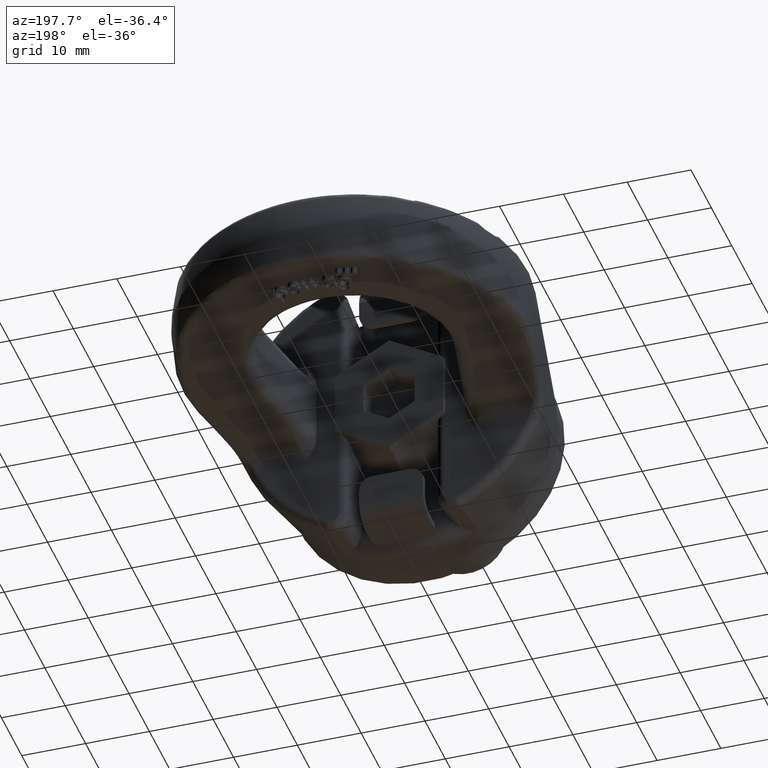
[diagram: clean part render]
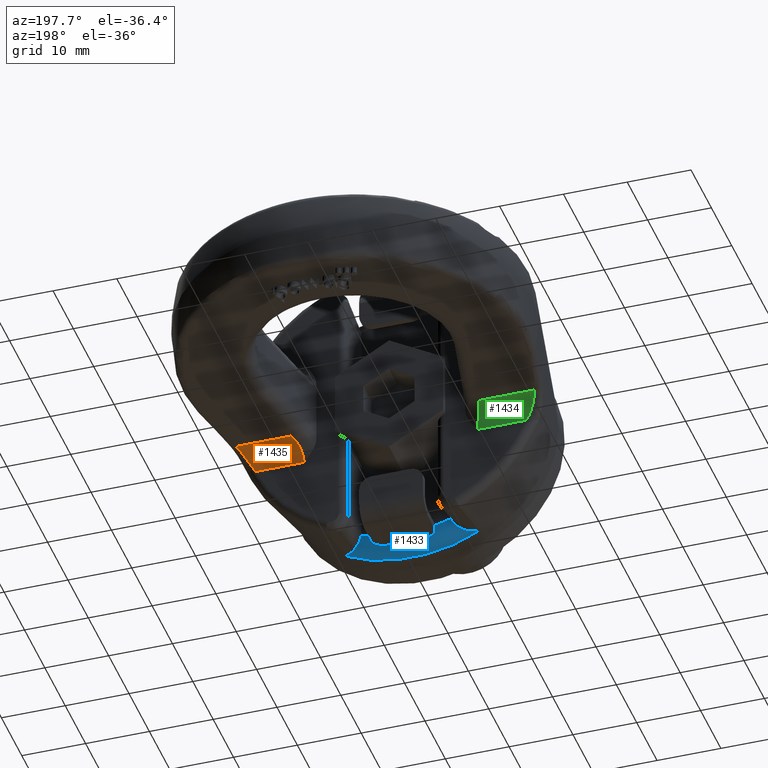
[diagram: same view with three faces highlighted in distinct colors, each labeled with its STEP entity id]
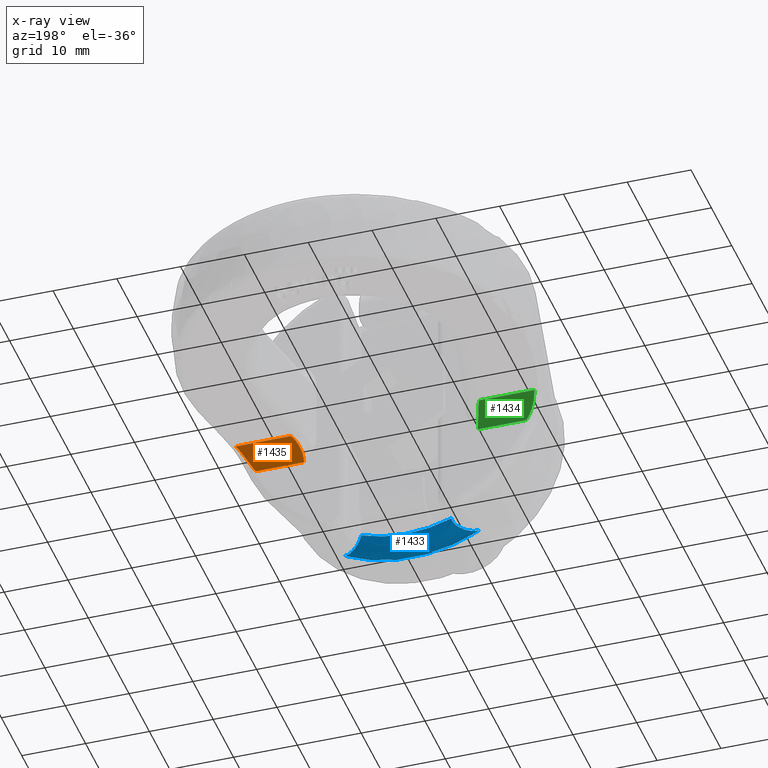
[diagram: x-ray of the same camera — body ghosted, the three highlighted faces saturated]
A machine part, auxiliary view with three faces highlighted in distinct colors.
The next image is the same camera in x-ray (body ghosted, the three faces saturated) — at least one of them is partly hidden behind the body in this view.
Their STEP definitions:

[orange] entity #1435 — the highlighted cylindrical surface (edge-blend (fillet) strip) has radius 3 mm, axis along (1, 0, 0).
#1055=ELLIPSE('',#5263,3.19150256967254,3.);
#1069=CYLINDRICAL_SURFACE('',#5264,3.);
#1203=FACE_OUTER_BOUND('',#1966,.T.);
#1435=ADVANCED_FACE('',(#1203),#1069,.F.);
#1966=EDGE_LOOP('',(#3381,#3382,#3383,#3384));
#2145=LINE('',#6711,#2425);
#2244=LINE('',#8251,#2552);
#2425=VECTOR('',#5473,1.);
#2552=VECTOR('',#5834,1.);
#3381=ORIENTED_EDGE('',*,*,#4366,.F.);
#3382=ORIENTED_EDGE('',*,*,#4646,.T.);
#3383=ORIENTED_EDGE('',*,*,#4606,.F.);
#3384=ORIENTED_EDGE('',*,*,#4647,.T.);
#3976=VERTEX_POINT('',#6710);
#3977=VERTEX_POINT('',#6712);
#4123=VERTEX_POINT('',#8250);
#4124=VERTEX_POINT('',#8252);
#4366=EDGE_CURVE('',#3976,#3977,#2145,.T.);
#4606=EDGE_CURVE('',#4123,#4124,#2244,.T.);
#4646=EDGE_CURVE('',#3976,#4124,#1055,.T.);
#4647=EDGE_CURVE('',#4123,#3977,#5025,.T.);
#5025=B_SPLINE_CURVE_WITH_KNOTS('',3,(#8542,#8543,#8544,#8545,#8546,#8547,
#8548,#8549,#8550,#8551,#8552,#8553,#8554,#8555,#8556,#8557),
 .UNSPECIFIED.,.F.,.F.,(4,3,3,3,3,4),(0.,0.209147169686292,0.420440536468641,
0.639696141850798,0.868719709429796,1.),.UNSPECIFIED.);
#5263=AXIS2_PLACEMENT_3D('',#8541,#5881,#5882);
#5264=AXIS2_PLACEMENT_3D('',#8558,#5883,#5884);
#5473=DIRECTION('',(1.,1.4851200490521E-15,2.34291072916505E-15));
#5834=DIRECTION('',(-1.,-1.4851200490521E-15,-2.34291072916505E-15));
#5881=DIRECTION('',(-0.939996109828548,0.341185160150902,-2.20232697109071E-15));
#5882=DIRECTION('',(0.341185160150902,0.939996109828548,7.99366372349444E-16));
#5883=DIRECTION('',(1.,1.4851200490521E-15,2.34291072916505E-15));
#5884=DIRECTION('',(1.73472347597681E-15,-1.,0.));
#6710=CARTESIAN_POINT('',(13.6366331307684,18.,-8.99999999999998));
#6711=CARTESIAN_POINT('',(11.6722781153861,18.,-8.99999999999998));
#6712=CARTESIAN_POINT('',(21.2296447141688,18.,-8.99999999999996));
#8250=CARTESIAN_POINT('',(23.4186353164932,21.,-5.99999999999995));
#8251=CARTESIAN_POINT('',(-54.9999999999999,20.9999999999999,-6.00000000000014));
#8252=CARTESIAN_POINT('',(14.7255264461241,21.,-5.99999999999997));
#8541=CARTESIAN_POINT('',(14.7255264461241,21.,-8.99999999999997));
#8542=CARTESIAN_POINT('',(23.4186353164932,21.,-5.99999999999995));
#8543=CARTESIAN_POINT('',(23.318591284184,20.652835344821,-5.99999999999995));
#8544=CARTESIAN_POINT('',(23.2012204579252,20.3058772084771,-6.06187042596682));
#8545=CARTESIAN_POINT('',(23.0742548614569,19.987476494943,-6.17603184300754));
#8546=CARTESIAN_POINT('',(22.9458851934657,19.665554690758,-6.29145573428644));
#8547=CARTESIAN_POINT('',(22.8040979725002,19.3643222310341,-6.46316540629763));
#8548=CARTESIAN_POINT('',(22.6542194395019,19.1059823933409,-6.67347957119104));
#8549=CARTESIAN_POINT('',(22.4986877297285,18.8378983932164,-6.89172644751839));
#8550=CARTESIAN_POINT('',(22.3302931005753,18.609343354211,-7.15671366830581));
#8551=CARTESIAN_POINT('',(22.1549444643419,18.4350401279577,-7.44404985465057));
#8552=CARTESIAN_POINT('',(21.9717940895219,18.2529816762562,-7.74417041081129));
#8553=CARTESIAN_POINT('',(21.7764398006005,18.1254870843201,-8.0755870947477));
#8554=CARTESIAN_POINT('',(21.5779505916863,18.0582852711474,-8.41151511994626));
#8555=CARTESIAN_POINT('',(21.4632622364284,18.0194556266278,-8.60561651672135));
#8556=CARTESIAN_POINT('',(21.3464066023016,18.,-8.80326877768136));
#8557=CARTESIAN_POINT('',(21.2296447141688,18.,-8.99999999999996));
#8558=CARTESIAN_POINT('',(11.6722781153861,21.,-8.99999999999998));

[blue] entity #1433 — the highlighted toroidal blend (fillet) surface has major radius 20.0801 mm and minor (blend) radius 2.4 mm.
#1019=TOROIDAL_SURFACE('',#5260,20.0800916422957,2.4);
#1201=FACE_OUTER_BOUND('',#1964,.T.);
#1433=ADVANCED_FACE('',(#1201),#1019,.T.);
#1678=CIRCLE('',#5136,22.4327372004093);
#1714=CIRCLE('',#5251,20.0800916422957);
#1964=EDGE_LOOP('',(#3373,#3374,#3375,#3376));
#3373=ORIENTED_EDGE('',*,*,#4641,.T.);
#3374=ORIENTED_EDGE('',*,*,#4628,.F.);
#3375=ORIENTED_EDGE('',*,*,#4643,.T.);
#3376=ORIENTED_EDGE('',*,*,#4377,.F.);
#3987=VERTEX_POINT('',#6768);
#3988=VERTEX_POINT('',#6770);
#4144=VERTEX_POINT('',#8382);
#4145=VERTEX_POINT('',#8384);
#4377=EDGE_CURVE('',#3987,#3988,#1678,.T.);
#4628=EDGE_CURVE('',#4144,#4145,#1714,.T.);
#4641=EDGE_CURVE('',#3987,#4145,#5021,.T.);
#4643=EDGE_CURVE('',#4144,#3988,#5023,.T.);
#5021=B_SPLINE_CURVE_WITH_KNOTS('',3,(#8435,#8436,#8437,#8438,#8439,#8440,
#8441,#8442,#8443,#8444,#8445,#8446,#8447,#8448,#8449,#8450,#8451,#8452,
#8453,#8454,#8455,#8456),.UNSPECIFIED.,.F.,.F.,(4,3,3,3,3,3,3,4),(0.,0.00194914076730447,
0.271153439757407,0.506798867871062,0.675857967209414,0.784159556123393,
0.891993907586608,1.),.UNSPECIFIED.);
#5023=B_SPLINE_CURVE_WITH_KNOTS('',3,(#8488,#8489,#8490,#8491,#8492,#8493,
#8494,#8495,#8496,#8497,#8498,#8499,#8500,#8501,#8502,#8503,#8504,#8505,
#8506,#8507,#8508,#8509),.UNSPECIFIED.,.F.,.F.,(4,3,3,3,3,3,3,4),(0.,0.108006092413392,
0.215840443876606,0.324142032790587,0.493201132128941,0.728846560242598,
0.998050859232694,1.),.UNSPECIFIED.);
#5136=AXIS2_PLACEMENT_3D('',#6769,#5485,#5486);
#5251=AXIS2_PLACEMENT_3D('',#8383,#5850,#5851);
#5260=AXIS2_PLACEMENT_3D('',#8522,#5875,#5876);
#5485=DIRECTION('',(-1.23908819712629E-16,-1.,-2.90307303142896E-31));
#5486=DIRECTION('',(-1.,1.15994993866274E-16,-2.34291072916505E-15));
#5850=DIRECTION('',(1.23908819712629E-16,1.,2.90307303142896E-31));
#5851=DIRECTION('',(1.,-8.63902170806268E-17,2.34291072916505E-15));
#5875=DIRECTION('',(1.23908819712629E-16,1.,2.90307303142896E-31));
#5876=DIRECTION('',(1.,-1.54334199662511E-16,2.34291072916505E-15));
#6768=CARTESIAN_POINT('',(-10.501333033744,7.62559629229052,-19.8229589823775));
#6769=CARTESIAN_POINT('',(1.11982426825287E-13,7.62559629229051,2.62364829286905E-28));
#6770=CARTESIAN_POINT('',(10.5013330337441,7.62559629229052,-19.8229589823776));
#8382=CARTESIAN_POINT('',(7.05232007456228,10.5,-18.8009271560985));
#8383=CARTESIAN_POINT('',(1.52742436628412E-13,10.5,3.57861893575518E-28));
#8384=CARTESIAN_POINT('',(-7.05232007456219,10.5,-18.8009271560984));
#8435=CARTESIAN_POINT('',(-10.501333033744,7.62559629229052,-19.8229589823775));
#8436=CARTESIAN_POINT('',(-10.4992058885736,7.62778988937801,-19.8245864174677));
#8437=CARTESIAN_POINT('',(-10.4970771308916,7.62998423720541,-19.8262107369617));
#8438=CARTESIAN_POINT('',(-10.4949466631418,7.63217920730647,-19.8278319627798));
#8439=CARTESIAN_POINT('',(-10.2020094377873,7.93398544268004,-20.0507489221639));
#8440=CARTESIAN_POINT('',(-9.87363911208928,8.25207874689975,-20.2174997266942));
#8441=CARTESIAN_POINT('',(-9.53043099155098,8.56904269114705,-20.3087862894162));
#8442=CARTESIAN_POINT('',(-9.23009451436698,8.84641326810273,-20.3886698440918));
#8443=CARTESIAN_POINT('',(-8.9108390046211,9.12991376558816,-20.4125213578264));
#8444=CARTESIAN_POINT('',(-8.59623693834167,9.39756963851445,-20.3586354378062));
#8445=CARTESIAN_POINT('',(-8.36989233826234,9.59013818147683,-20.3198665029383));
#8446=CARTESIAN_POINT('',(-8.14068543916051,9.77894373427041,-20.2393285862488));
#8447=CARTESIAN_POINT('',(-7.92854548790866,9.94513599248283,-20.1082014478386));
#8448=CARTESIAN_POINT('',(-7.79185244544301,10.052222494932,-20.0237092652331));
#8449=CARTESIAN_POINT('',(-7.65999657778488,10.1516207227413,-19.9165164036356));
#8450=CARTESIAN_POINT('',(-7.5423738923051,10.2348467032882,-19.7879482279105));
#8451=CARTESIAN_POINT('',(-7.42559364318106,10.3174766033131,-19.660300882253));
#8452=CARTESIAN_POINT('',(-7.32051191360146,10.3856630681585,-19.5081905914541));
#8453=CARTESIAN_POINT('',(-7.23742799514074,10.4310543656608,-19.3414696736865));
#8454=CARTESIAN_POINT('',(-7.15429736476235,10.4764711833191,-19.1746550211273));
#8455=CARTESIAN_POINT('',(-7.09121297702418,10.5,-18.9887777868662));
#8456=CARTESIAN_POINT('',(-7.05232007456219,10.5,-18.8009271560984));
#8488=CARTESIAN_POINT('',(7.05232007456228,10.5,-18.8009271560985));
#8489=CARTESIAN_POINT('',(7.09121297702428,10.5,-18.9887777868662));
#8490=CARTESIAN_POINT('',(7.15429736476245,10.4764711833191,-19.1746550211274));
#8491=CARTESIAN_POINT('',(7.23742799514083,10.4310543656608,-19.3414696736866));
#8492=CARTESIAN_POINT('',(7.32051191360156,10.3856630681585,-19.5081905914542));
#8493=CARTESIAN_POINT('',(7.42559364318116,10.3174766033131,-19.6603008822531));
#8494=CARTESIAN_POINT('',(7.5423738923052,10.2348467032882,-19.7879482279106));
#8495=CARTESIAN_POINT('',(7.65999657778498,10.1516207227413,-19.9165164036357));
#8496=CARTESIAN_POINT('',(7.79185244544312,10.052222494932,-20.0237092652332));
#8497=CARTESIAN_POINT('',(7.92854548790876,9.94513599248283,-20.1082014478387));
#8498=CARTESIAN_POINT('',(8.14068543916062,9.77894373427041,-20.2393285862489));
#8499=CARTESIAN_POINT('',(8.36989233826245,9.59013818147682,-20.3198665029384));
#8500=CARTESIAN_POINT('',(8.59623693834179,9.39756963851444,-20.3586354378063));
#8501=CARTESIAN_POINT('',(8.91083900462123,9.12991376558816,-20.4125213578265));
#8502=CARTESIAN_POINT('',(9.23009451436712,8.84641326810274,-20.3886698440919));
#8503=CARTESIAN_POINT('',(9.53043099155114,8.56904269114708,-20.3087862894162));
#8504=CARTESIAN_POINT('',(9.87363911208944,8.25207874689982,-20.2174997266943));
#8505=CARTESIAN_POINT('',(10.2020094374593,7.93398544229769,-20.0507489222505));
#8506=CARTESIAN_POINT('',(10.4949466631492,7.63217920731501,-19.827831962778));
#8507=CARTESIAN_POINT('',(10.4970771309014,7.62998423721679,-19.8262107369592));
#8508=CARTESIAN_POINT('',(10.4992058885762,7.62778988938087,-19.8245864174671));
#8509=CARTESIAN_POINT('',(10.5013330337441,7.62559629229052,-19.8229589823776));
#8522=CARTESIAN_POINT('',(1.52445055461101E-13,8.1,3.57165156047975E-28));

[green] entity #1434 — the highlighted cylindrical surface (edge-blend (fillet) strip) has radius 3 mm, axis along (1, -0, 0).
#1054=ELLIPSE('',#5261,3.19150256967254,3.);
#1068=CYLINDRICAL_SURFACE('',#5262,3.);
#1202=FACE_OUTER_BOUND('',#1965,.T.);
#1434=ADVANCED_FACE('',(#1202),#1068,.F.);
#1965=EDGE_LOOP('',(#3377,#3378,#3379,#3380));
#2130=LINE('',#6607,#2410);
#2243=LINE('',#8237,#2551);
#2410=VECTOR('',#5444,1.);
#2551=VECTOR('',#5831,1.);
#3377=ORIENTED_EDGE('',*,*,#4602,.F.);
#3378=ORIENTED_EDGE('',*,*,#4644,.T.);
#3379=ORIENTED_EDGE('',*,*,#4339,.F.);
#3380=ORIENTED_EDGE('',*,*,#4645,.T.);
#3951=VERTEX_POINT('',#6606);
#3952=VERTEX_POINT('',#6608);
#4119=VERTEX_POINT('',#8236);
#4120=VERTEX_POINT('',#8238);
#4339=EDGE_CURVE('',#3951,#3952,#2130,.T.);
#4602=EDGE_CURVE('',#4119,#4120,#2243,.T.);
#4644=EDGE_CURVE('',#4119,#3952,#1054,.T.);
#4645=EDGE_CURVE('',#3951,#4120,#5024,.T.);
#5024=B_SPLINE_CURVE_WITH_KNOTS('',3,(#8524,#8525,#8526,#8527,#8528,#8529,
#8530,#8531,#8532,#8533,#8534,#8535,#8536,#8537,#8538,#8539),
 .UNSPECIFIED.,.F.,.F.,(4,3,3,3,3,4),(0.,0.241152970544274,0.480221762712701,
0.709509830435156,0.927904638775179,1.),.UNSPECIFIED.);
#5261=AXIS2_PLACEMENT_3D('',#8523,#5877,#5878);
#5262=AXIS2_PLACEMENT_3D('',#8540,#5879,#5880);
#5444=DIRECTION('',(1.,-1.4851200490521E-15,2.34291072916505E-15));
#5831=DIRECTION('',(-1.,1.4851200490521E-15,-2.34291072916505E-15));
#5877=DIRECTION('',(0.939996109828548,0.341185160150902,2.20232697109071E-15));
#5878=DIRECTION('',(0.341185160150902,-0.939996109828548,7.99366372349443E-16));
#5879=DIRECTION('',(1.,-1.4851200490521E-15,2.34291072916505E-15));
#5880=DIRECTION('',(-1.44560289664734E-15,-1.,0.));
#6606=CARTESIAN_POINT('',(-21.2296447141686,18.,-9.00000000000006));
#6607=CARTESIAN_POINT('',(-6.99999999999998,18.,-9.00000000000002));
#6608=CARTESIAN_POINT('',(-13.6366331307683,18.,-9.00000000000004));
#8236=CARTESIAN_POINT('',(-14.7255264461241,21.,-6.00000000000004));
#8237=CARTESIAN_POINT('',(-55.0000000000001,21.0000000000001,-6.00000000000014));
#8238=CARTESIAN_POINT('',(-23.4186353164931,21.,-6.00000000000006));
#8523=CARTESIAN_POINT('',(-14.7255264461241,21.,-9.00000000000004));
#8524=CARTESIAN_POINT('',(-21.2296447141686,18.,-9.00000000000006));
#8525=CARTESIAN_POINT('',(-21.4424358023261,18.,-8.64146990476788));
#8526=CARTESIAN_POINT('',(-21.656450529182,18.0655693290764,-8.27755058056345));
#8527=CARTESIAN_POINT('',(-21.8589532459173,18.1947309432244,-7.93676647950832));
#8528=CARTESIAN_POINT('',(-22.0595421753855,18.3226718929954,-7.59920301807703));
#8529=CARTESIAN_POINT('',(-22.2541032700954,18.5168450229433,-7.27600103282195));
#8530=CARTESIAN_POINT('',(-22.4338887445757,18.7648326999871,-6.99899346803847));
#8531=CARTESIAN_POINT('',(-22.6063144905747,19.0026687116919,-6.73332553160899));
#8532=CARTESIAN_POINT('',(-22.7700842941187,19.2964672568826,-6.50345506907632));
#8533=CARTESIAN_POINT('',(-22.9187976418703,19.6225834372702,-6.33490645328964));
#8534=CARTESIAN_POINT('',(-23.0604792980135,19.933279694405,-6.17432741054502));
#8535=CARTESIAN_POINT('',(-23.1927214101043,20.2817865169333,-6.06516672032086));
#8536=CARTESIAN_POINT('',(-23.3081098760895,20.6384406081173,-6.02186722825509));
#8537=CARTESIAN_POINT('',(-23.346711257581,20.7577535785841,-6.0073820698179));
#8538=CARTESIAN_POINT('',(-23.3836798604533,20.8787004225784,-6.00000000000006));
#8539=CARTESIAN_POINT('',(-23.4186353164931,21.,-6.00000000000006));
#8540=CARTESIAN_POINT('',(-6.99999999999998,21.,-9.00000000000002));